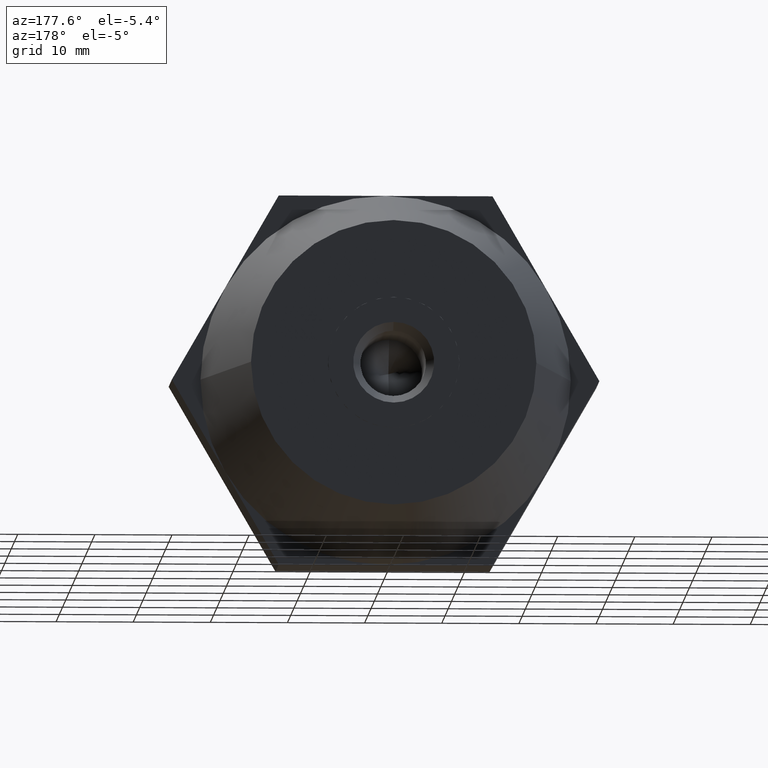
[diagram: clean part render]
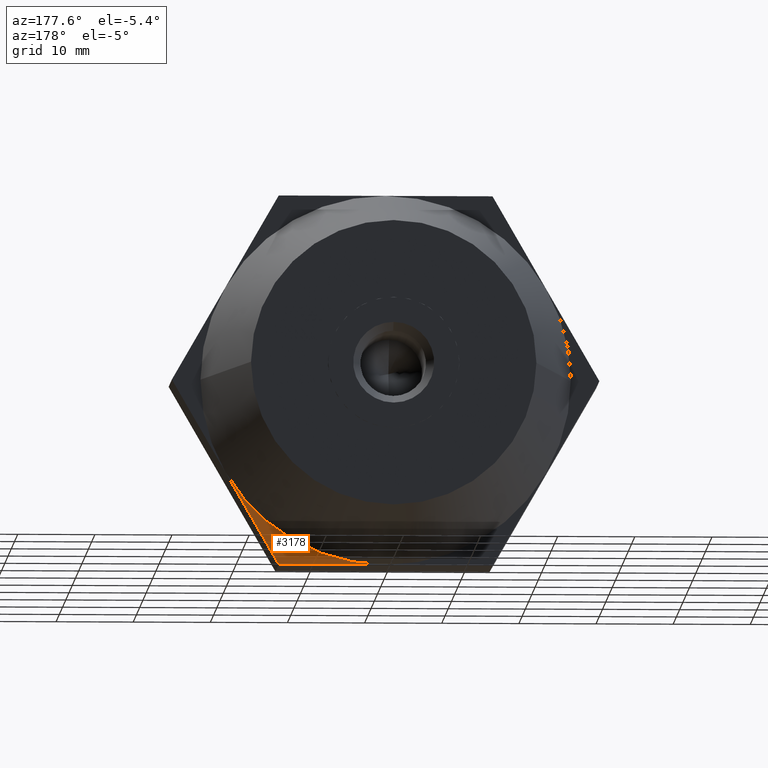
[diagram: same view with one face highlighted and labeled with its STEP entity id]
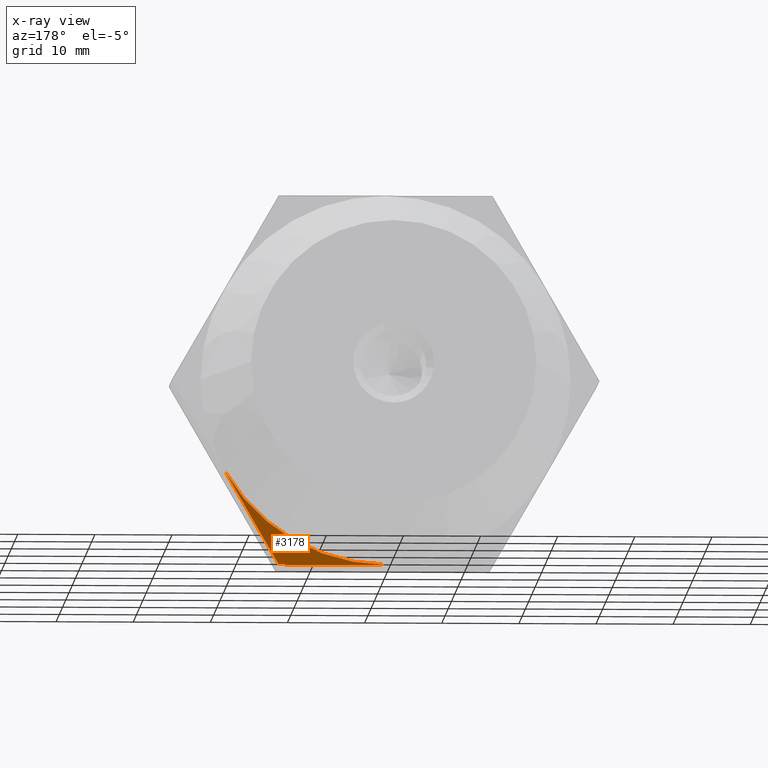
[diagram: x-ray of the same camera — body ghosted, the highlighted face saturated]
A machine part, auxiliary view. The second image highlights one B-rep face of the part: STEP entity #3178.
The next image is the same camera in x-ray: the body ghosted, the highlighted face saturated — about 0% of this face is hidden behind the body in this view.
In plain terms, the highlighted planar face has unit normal (0, 1, 0).
Its self-contained STEP definition (entity closure, byte-faithful):
#264 = CIRCLE ( 'NONE', #342, 24.00000000000000000 ) ;
#310 = EDGE_LOOP ( 'NONE', ( #1288, #3928, #758 ) ) ;
#342 = AXIS2_PLACEMENT_3D ( 'NONE', #635, #2482, #2773 ) ;
#468 = VERTEX_POINT ( 'NONE', #1442 ) ;
#552 = EDGE_CURVE ( 'NONE', #2568, #468, #1137, .T. ) ;
#561 = CARTESIAN_POINT ( 'NONE',  ( -2.774555597924435200E-031, 5.000000000000000000, -24.00000000000000000 ) ) ;
#635 = CARTESIAN_POINT ( 'NONE',  ( 3.061616997868379900E-015, 5.000000000000000000, 0.0000000000000000000 ) ) ;
#655 = LINE ( 'NONE', #3273, #3089 ) ;
#758 = ORIENTED_EDGE ( 'NONE', *, *, #2952, .T. ) ;
#1057 = VECTOR ( 'NONE', #1860, 1000.000000000000000 ) ;
#1137 = LINE ( 'NONE', #3960, #1057 ) ;
#1271 = CARTESIAN_POINT ( 'NONE',  ( 20.78460969082650000, 5.000000000000000000, -12.00000000000000000 ) ) ;
#1288 = ORIENTED_EDGE ( 'NONE', *, *, #3306, .F. ) ;
#1373 = VERTEX_POINT ( 'NONE', #561 ) ;
#1435 = DIRECTION ( 'NONE',  ( -1.000000000000000000, 0.0000000000000000000, 0.0000000000000000000 ) ) ;
#1442 = CARTESIAN_POINT ( 'NONE',  ( 13.85640646055100000, 5.000000000000000000, -24.00000000000000000 ) ) ;
#1775 = AXIS2_PLACEMENT_3D ( 'NONE', #1813, #2420, #2447 ) ;
#1813 = CARTESIAN_POINT ( 'NONE',  ( 0.0000000000000000000, 5.000000000000000000, 0.0000000000000000000 ) ) ;
#1860 = DIRECTION ( 'NONE',  ( -0.4999999999999998900, 0.0000000000000000000, -0.8660254037844387100 ) ) ;
#2420 = DIRECTION ( 'NONE',  ( 0.0000000000000000000, 1.000000000000000000, 0.0000000000000000000 ) ) ;
#2447 = DIRECTION ( 'NONE',  ( 0.0000000000000000000, 0.0000000000000000000, 1.000000000000000000 ) ) ;
#2482 = DIRECTION ( 'NONE',  ( -1.224646799147352000E-016, 1.000000000000000000, 0.0000000000000000000 ) ) ;
#2568 = VERTEX_POINT ( 'NONE', #1271 ) ;
#2773 = DIRECTION ( 'NONE',  ( -1.000000000000000000, -1.084202172485504400E-016, 0.0000000000000000000 ) ) ;
#2952 = EDGE_CURVE ( 'NONE', #468, #1373, #655, .T. ) ;
#3089 = VECTOR ( 'NONE', #1435, 1000.000000000000000 ) ;
#3178 = ADVANCED_FACE ( 'NONE', ( #3824 ), #3684, .T. ) ;
#3273 = CARTESIAN_POINT ( 'NONE',  ( 13.85640646055100000, 5.000000000000000000, -24.00000000000000000 ) ) ;
#3306 = EDGE_CURVE ( 'NONE', #2568, #1373, #264, .T. ) ;
#3684 = PLANE ( 'NONE',  #1775 ) ;
#3824 = FACE_OUTER_BOUND ( 'NONE', #310, .T. ) ;
#3928 = ORIENTED_EDGE ( 'NONE', *, *, #552, .T. ) ;
#3960 = CARTESIAN_POINT ( 'NONE',  ( 27.71281292110205300, 5.000000000000000000, -1.024206980640409900E-014 ) ) ;